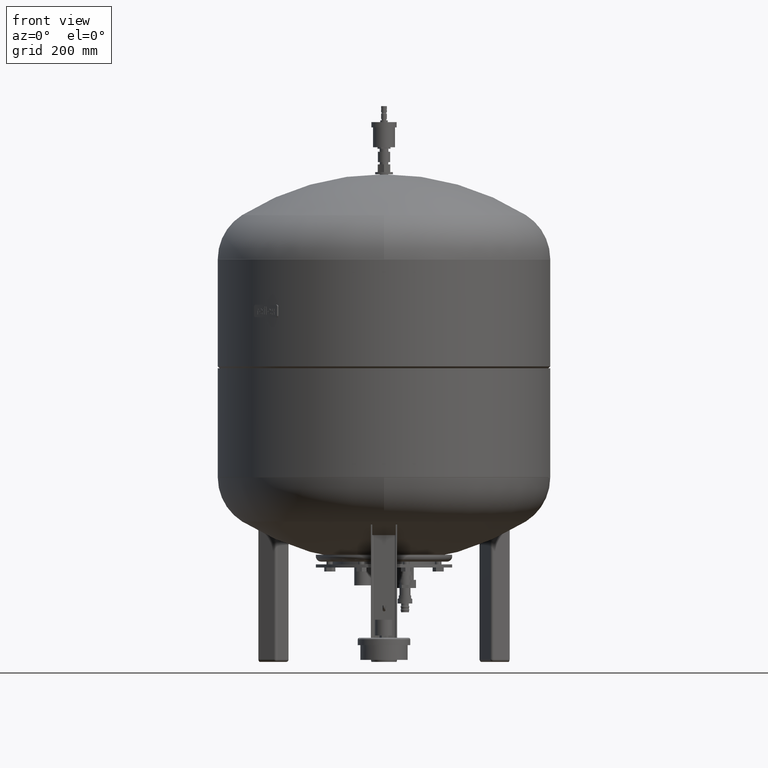
[diagram: clean part render]
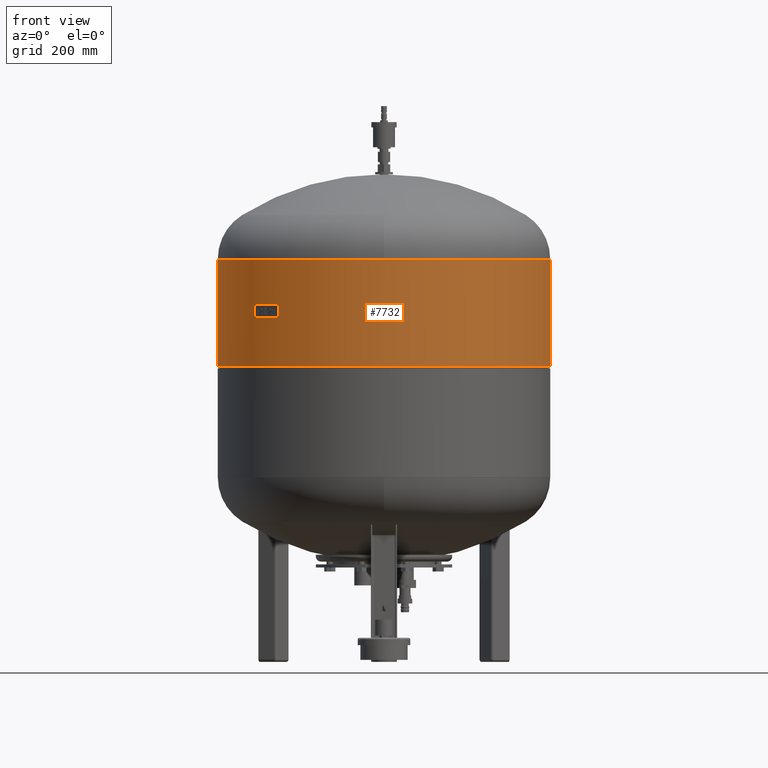
[diagram: same view with one face highlighted and labeled with its STEP entity id]
A machine part, front view. The second image highlights one B-rep face of the part: STEP entity #7732.
In plain terms, the highlighted cylindrical surface (partial cylindrical patch) has radius 317 mm, axis along (-0, 0, -1).
Its self-contained STEP definition (entity closure, byte-faithful):
#7632=CARTESIAN_POINT('',(316.999999999999830,3.882130E-014,563.500000000000000));
#7633=VERTEX_POINT('',#7632);
#7649=CARTESIAN_POINT('',(-316.999999999999940,-1.282117E-018,563.500000000000000));
#7650=VERTEX_POINT('',#7649);
#7672=CARTESIAN_POINT('',(317.0,3.882130E-014,768.0));
#7673=VERTEX_POINT('',#7672);
#7674=CARTESIAN_POINT('',(316.999999999999830,3.882130E-014,563.500000000000000));
#7675=DIRECTION('',(0.0,0.0,1.0));
#7676=VECTOR('',#7675,204.500000000000000);
#7677=LINE('',#7674,#7676);
#7678=EDGE_CURVE('',#7633,#7673,#7677,.T.);
#7681=CARTESIAN_POINT('',(-316.999999999999940,-1.282117E-018,768.000000000000110));
#7682=VERTEX_POINT('',#7681);
#7683=CARTESIAN_POINT('',(-316.999999999999940,-1.282117E-018,563.500000000000000));
#7684=DIRECTION('',(0.0,0.0,1.0));
#7685=VECTOR('',#7684,204.500000000000110);
#7686=LINE('',#7683,#7685);
#7687=EDGE_CURVE('',#7650,#7682,#7686,.T.);
#7704=CARTESIAN_POINT('',(8.784689E-015,-2.043686E-030,768.000000000000110));
#7705=DIRECTION('',(0.0,0.0,-1.0));
#7706=DIRECTION('',(1.0,0.0,0.0));
#7707=AXIS2_PLACEMENT_3D('',#7704,#7705,#7706);
#7708=CIRCLE('',#7707,317.0);
#7709=EDGE_CURVE('',#7673,#7682,#7708,.T.);
#7715=CARTESIAN_POINT('',(5.224356E-015,-1.215404E-030,683.700000000000050));
#7716=DIRECTION('',(-4.223408E-017,9.825415E-033,-1.0));
#7717=DIRECTION('',(1.0,0.0,0.0));
#7718=AXIS2_PLACEMENT_3D('',#7715,#7716,#7717);
#7719=CYLINDRICAL_SURFACE('',#7718,316.999999999999940);
#7720=ORIENTED_EDGE('',*,*,#7678,.T.);
#7721=ORIENTED_EDGE('',*,*,#7709,.T.);
#7722=ORIENTED_EDGE('',*,*,#7687,.F.);
#7723=CARTESIAN_POINT('',(1.478193E-016,-3.438895E-032,563.500000000000000));
#7724=DIRECTION('',(0.0,0.0,-1.0));
#7725=DIRECTION('',(1.0,0.0,0.0));
#7726=AXIS2_PLACEMENT_3D('',#7723,#7724,#7725);
#7727=CIRCLE('',#7726,316.999999999999830);
#7728=EDGE_CURVE('',#7633,#7650,#7727,.T.);
#7729=ORIENTED_EDGE('',*,*,#7728,.F.);
#7730=EDGE_LOOP('',(#7720,#7721,#7722,#7729));
#7731=FACE_OUTER_BOUND('',#7730,.T.);
#7732=ADVANCED_FACE('',(#7731),#7719,.T.);